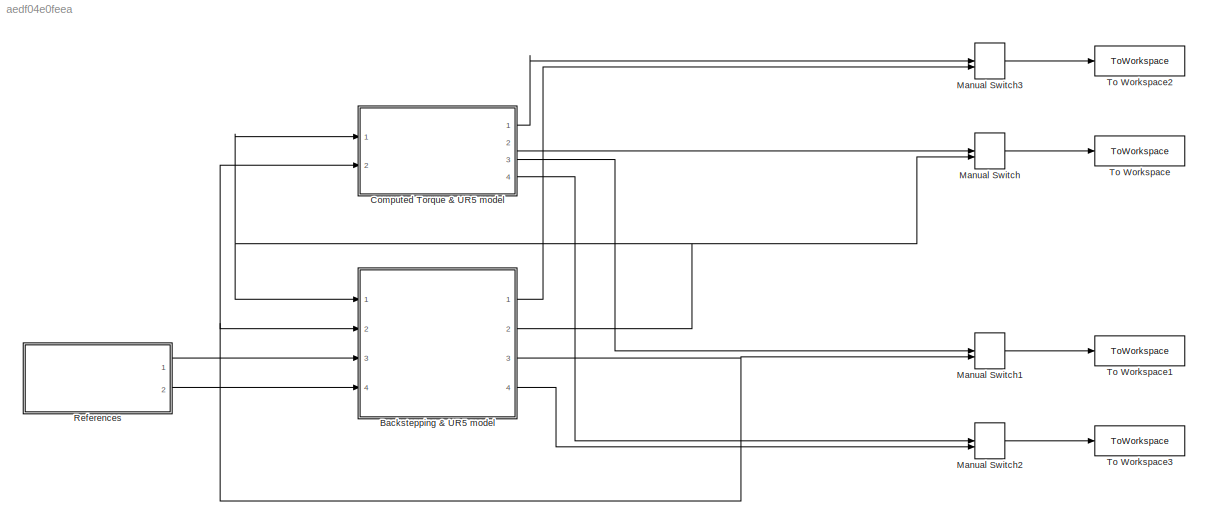
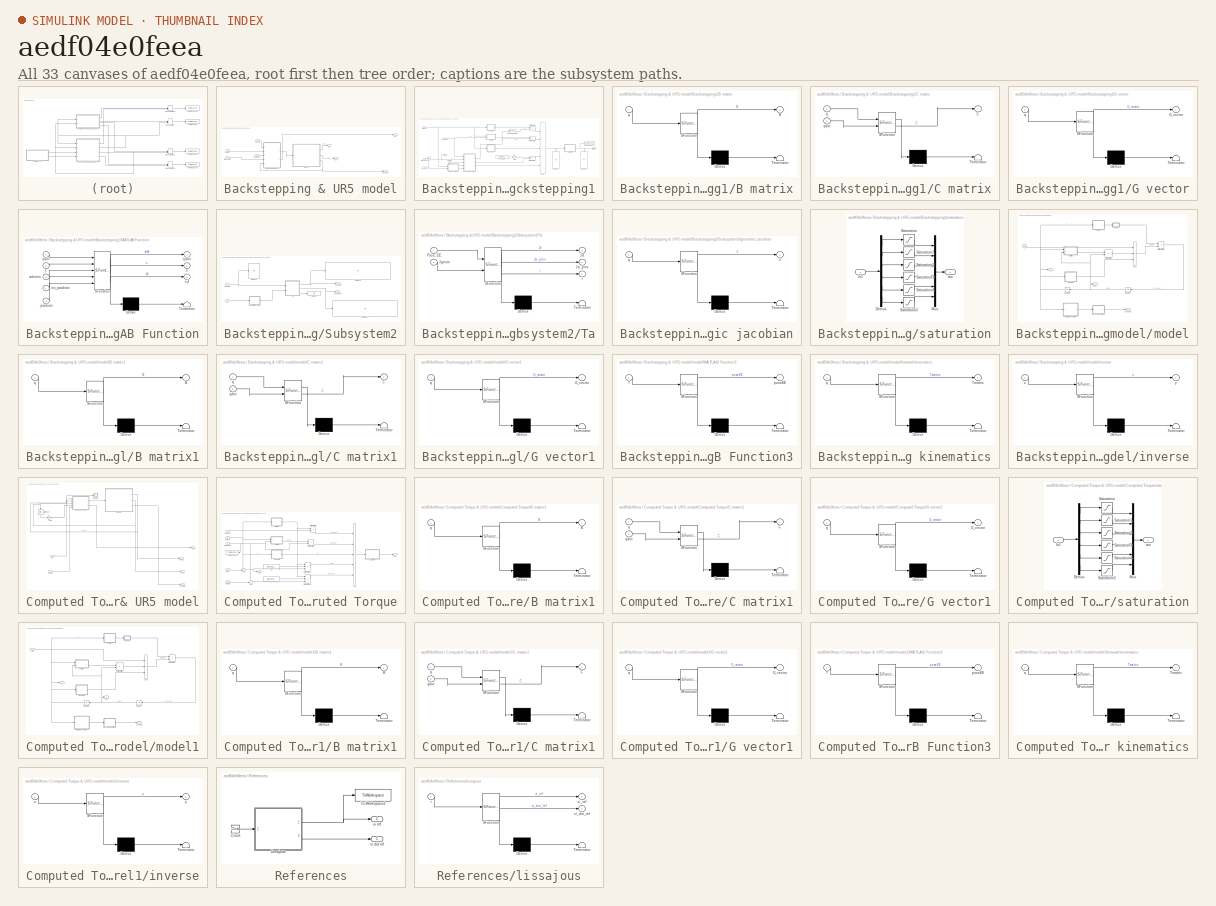
[diagram: thumbnail index - all 33 canvases of the model, root first then tree order]
MODEL slx_aedf04e0feea
KIND model
CONFIG AbsTol = auto
CONFIG EnableMultiTasking = off
CONFIG FixedStep = auto
CONFIG InitFcn = parametersUR5_BACKSTEPPING
CONFIG MaxStep = auto
CONFIG MinStep = auto
CONFIG RelTol = 1e-3
CONFIG SampleTimeConstraint = Unconstrained
CONFIG SolverName = ode23t
CONFIG StartTime = 0.0
CONFIG StopFcn = show_results
CONFIG StopTime = 30
BLOCK [SubSystem] Backstepping & UR5 model
  Ports = [4, 4]
  RequestExecContextInheritance = off
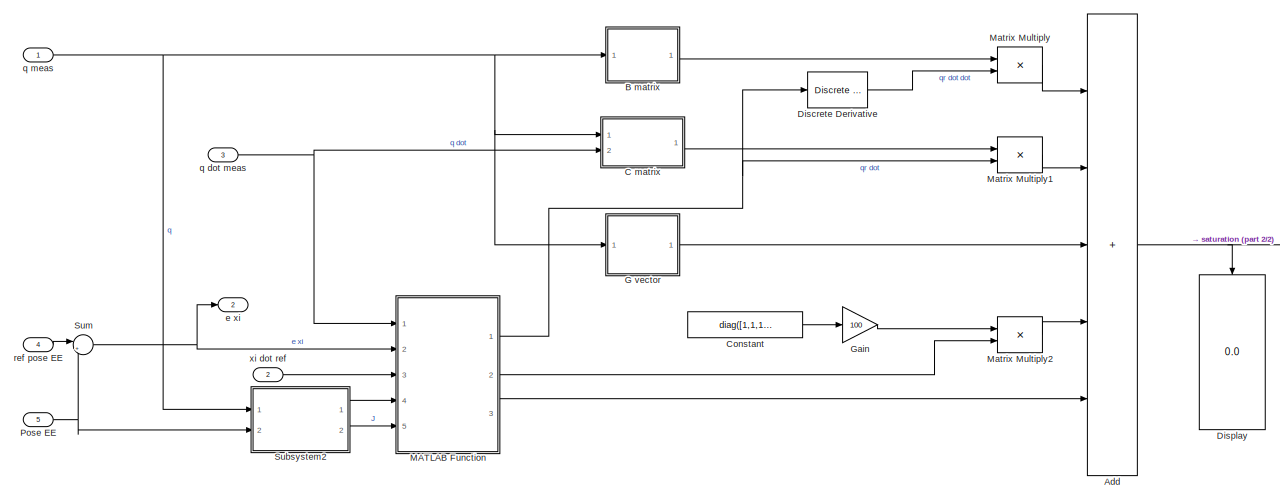
[diagram: Backstepping & UR5 model/Backstepping1 - part 1/2, most of the canvas]
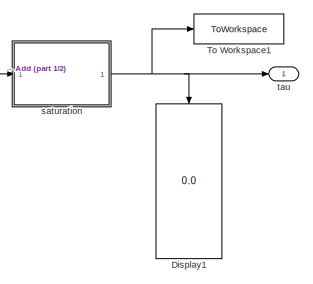
[diagram: Backstepping & UR5 model/Backstepping1 - part 2/2, middle right region]
BLOCK [SubSystem] Backstepping & UR5 model/Backstepping1
  Ports = [5, 2]
  RequestExecContextInheritance = off
BLOCK [Sum] Backstepping & UR5 model/Backstepping1/Add
  IconShape = rectangular
  Inputs = +++++
  Ports = [5, 1]
BLOCK [SubSystem] Backstepping & UR5 model/Backstepping1/B matrix
  ErrorFcn = Stateflow.Translate.translate
  PermitHierarchicalResolution = ExplicitOnly
  Ports = [1, 1]
  RequestExecContextInheritance = off
  SFBlockType = MATLAB Function
  TreatAsAtomicUnit = on
BLOCK [Demux] Backstepping & UR5 model/Backstepping1/B matrix/ Demux 
  Outputs = 1
  Ports = [1, 1]
BLOCK [S-Function] Backstepping & UR5 model/Backstepping1/B matrix/ SFunction 
  EnableBusSupport = on
  FunctionName = sf_sfun
  Parameters = m1,m2,m3,m4,m5,m6
  PortCounts = [1 2]
  Ports = [1, 2]
  SFcnIsStateOwnerBlock = off
  SFunctionDeploymentMode = off
  Tag = Stateflow S-Function 1
BLOCK [Terminator] Backstepping & UR5 model/Backstepping1/B matrix/ Terminator 
BLOCK [Outport] Backstepping & UR5 model/Backstepping1/B matrix/B
BLOCK [Inport] Backstepping & UR5 model/Backstepping1/B matrix/q
BLOCK [SubSystem] Backstepping & UR5 model/Backstepping1/C matrix
  ErrorFcn = Stateflow.Translate.translate
  PermitHierarchicalResolution = ExplicitOnly
  Ports = [2, 1]
  RequestExecContextInheritance = off
  SFBlockType = MATLAB Function
  TreatAsAtomicUnit = on
BLOCK [Demux] Backstepping & UR5 model/Backstepping1/C matrix/ Demux 
  Outputs = 1
  Ports = [1, 1]
BLOCK [S-Function] Backstepping & UR5 model/Backstepping1/C matrix/ SFunction 
  EnableBusSupport = on
  FunctionName = sf_sfun
  Parameters = m2,m3,m4,m5,m6
  PortCounts = [2 2]
  Ports = [2, 2]
  SFcnIsStateOwnerBlock = off
  SFunctionDeploymentMode = off
  Tag = Stateflow S-Function 3
BLOCK [Terminator] Backstepping & UR5 model/Backstepping1/C matrix/ Terminator 
BLOCK [Outport] Backstepping & UR5 model/Backstepping1/C matrix/C
BLOCK [Inport] Backstepping & UR5 model/Backstepping1/C matrix/q
BLOCK [Inport] Backstepping & UR5 model/Backstepping1/C matrix/qdot
  Port = 2
BLOCK [Constant] Backstepping & UR5 model/Backstepping1/Constant
  Value = diag([1,1,1,1,1,1])*40
BLOCK [Reference] Backstepping & UR5 model/Backstepping1/Discrete Derivative  REF=simulink/Discrete/Discrete Derivative
  Ports = [1, 1]
  SourceBlock = simulink/Discrete/Discrete Derivative
  SourceProductBaseCode = SL
  SourceType = Discrete Derivative
BLOCK [Display] Backstepping & UR5 model/Backstepping1/Display
  Decimation = 1
  NameLocation = left
  Ports = [1]
BLOCK [Display] Backstepping & UR5 model/Backstepping1/Display1
  Decimation = 1
  NameLocation = left
  Ports = [1]
BLOCK [SubSystem] Backstepping & UR5 model/Backstepping1/G vector
  ErrorFcn = Stateflow.Translate.translate
  PermitHierarchicalResolution = ExplicitOnly
  Ports = [1, 1]
  RequestExecContextInheritance = off
  SFBlockType = MATLAB Function
  TreatAsAtomicUnit = on
BLOCK [Demux] Backstepping & UR5 model/Backstepping1/G vector/ Demux 
  Outputs = 1
  Ports = [1, 1]
BLOCK [S-Function] Backstepping & UR5 model/Backstepping1/G vector/ SFunction 
  EnableBusSupport = on
  FunctionName = sf_sfun
  Parameters = m2,m3,m4,m5,m6
  PortCounts = [1 2]
  Ports = [1, 2]
  SFcnIsStateOwnerBlock = off
  SFunctionDeploymentMode = off
  Tag = Stateflow S-Function 4
BLOCK [Terminator] Backstepping & UR5 model/Backstepping1/G vector/ Terminator 
BLOCK [Outport] Backstepping & UR5 model/Backstepping1/G vector/G_vector
BLOCK [Inport] Backstepping & UR5 model/Backstepping1/G vector/q
BLOCK [Gain] Backstepping & UR5 model/Backstepping1/Gain
  Gain = 100
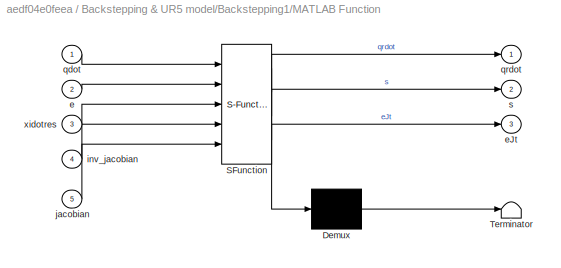
BLOCK [SubSystem] Backstepping & UR5 model/Backstepping1/MATLAB Function
  ErrorFcn = Stateflow.Translate.translate
  PermitHierarchicalResolution = ExplicitOnly
  Ports = [5, 3]
  RequestExecContextInheritance = off
  SFBlockType = MATLAB Function
  TreatAsAtomicUnit = on
BLOCK [Demux] Backstepping & UR5 model/Backstepping1/MATLAB Function/ Demux 
  Outputs = 1
  Ports = [1, 1]
BLOCK [S-Function] Backstepping & UR5 model/Backstepping1/MATLAB Function/ SFunction 
  EnableBusSupport = on
  FunctionName = sf_sfun
  PortCounts = [5 4]
  Ports = [5, 4]
  SFcnIsStateOwnerBlock = off
  SFunctionDeploymentMode = off
  Tag = Stateflow S-Function 5
BLOCK [Terminator] Backstepping & UR5 model/Backstepping1/MATLAB Function/ Terminator 
BLOCK [Inport] Backstepping & UR5 model/Backstepping1/MATLAB Function/e
  Port = 2
BLOCK [Outport] Backstepping & UR5 model/Backstepping1/MATLAB Function/eJt
  Port = 3
BLOCK [Inport] Backstepping & UR5 model/Backstepping1/MATLAB Function/inv_jacobian
  Port = 4
BLOCK [Inport] Backstepping & UR5 model/Backstepping1/MATLAB Function/jacobian
  Port = 5
BLOCK [Inport] Backstepping & UR5 model/Backstepping1/MATLAB Function/qdot
BLOCK [Outport] Backstepping & UR5 model/Backstepping1/MATLAB Function/qrdot
  VectorParamsAs1DForOutWhenUnconnected = off
BLOCK [Outport] Backstepping & UR5 model/Backstepping1/MATLAB Function/s
  Port = 2
BLOCK [Inport] Backstepping & UR5 model/Backstepping1/MATLAB Function/xidotres
  Port = 3
BLOCK [Product] Backstepping & UR5 model/Backstepping1/Matrix Multiply
  Multiplication = Matrix(*)
  Ports = [2, 1]
BLOCK [Product] Backstepping & UR5 model/Backstepping1/Matrix Multiply1
  Multiplication = Matrix(*)
  Ports = [2, 1]
BLOCK [Product] Backstepping & UR5 model/Backstepping1/Matrix Multiply2
  Multiplication = Matrix(*)
  Ports = [2, 1]
BLOCK [Inport] Backstepping & UR5 model/Backstepping1/Pose EE
  Port = 5
BLOCK [SubSystem] Backstepping & UR5 model/Backstepping1/Subsystem2
  Ports = [2, 2]
  RequestExecContextInheritance = off
BLOCK [Display] Backstepping & UR5 model/Backstepping1/Subsystem2/Display
  Decimation = 1
  Ports = [1]
BLOCK [Display] Backstepping & UR5 model/Backstepping1/Subsystem2/Display2
  Decimation = 1
  Ports = [1]
BLOCK [Display] Backstepping & UR5 model/Backstepping1/Subsystem2/Display3
  Decimation = 1
  Ports = [1]
BLOCK [Display] Backstepping & UR5 model/Backstepping1/Subsystem2/Display4
  Decimation = 1
  Ports = [1]
BLOCK [Inport] Backstepping & UR5 model/Backstepping1/Subsystem2/Pose EE
  Port = 2
BLOCK [SubSystem] Backstepping & UR5 model/Backstepping1/Subsystem2/Ta
  ErrorFcn = Stateflow.Translate.translate
  PermitHierarchicalResolution = ExplicitOnly
  Ports = [2, 3]
  RequestExecContextInheritance = off
  SFBlockType = MATLAB Function
  TreatAsAtomicUnit = on
BLOCK [Demux] Backstepping & UR5 model/Backstepping1/Subsystem2/Ta/ Demux 
  Outputs = 1
  Ports = [1, 1]
BLOCK [S-Function] Backstepping & UR5 model/Backstepping1/Subsystem2/Ta/ SFunction 
  EnableBusSupport = on
  FunctionName = sf_sfun
  PortCounts = [2 4]
  Ports = [2, 4]
  SFcnIsStateOwnerBlock = off
  SFunctionDeploymentMode = off
  Tag = Stateflow S-Function 10
BLOCK [Terminator] Backstepping & UR5 model/Backstepping1/Subsystem2/Ta/ Terminator 
BLOCK [Outport] Backstepping & UR5 model/Backstepping1/Subsystem2/Ta/Ja
BLOCK [Outport] Backstepping & UR5 model/Backstepping1/Subsystem2/Ta/Ja_pinv
  Port = 2
BLOCK [Inport] Backstepping & UR5 model/Backstepping1/Subsystem2/Ta/Jgeom
  Port = 2
BLOCK [Inport] Backstepping & UR5 model/Backstepping1/Subsystem2/Ta/Pose_EE
BLOCK [Outport] Backstepping & UR5 model/Backstepping1/Subsystem2/Ta/r
  Port = 3
BLOCK [SubSystem] Backstepping & UR5 model/Backstepping1/Subsystem2/geometric jacobian
  ErrorFcn = Stateflow.Translate.translate
  PermitHierarchicalResolution = ExplicitOnly
  Ports = [1, 1]
  RequestExecContextInheritance = off
  SFBlockType = MATLAB Function
  TreatAsAtomicUnit = on
BLOCK [Demux] Backstepping & UR5 model/Backstepping1/Subsystem2/geometric jacobian/ Demux 
  Outputs = 1
  Ports = [1, 1]
BLOCK [S-Function] Backstepping & UR5 model/Backstepping1/Subsystem2/geometric jacobian/ SFunction 
  EnableBusSupport = on
  FunctionName = sf_sfun
  PortCounts = [1 2]
  Ports = [1, 2]
  SFcnIsStateOwnerBlock = off
  SFunctionDeploymentMode = off
  Tag = Stateflow S-Function 20
BLOCK [Terminator] Backstepping & UR5 model/Backstepping1/Subsystem2/geometric jacobian/ Terminator 
BLOCK [Outport] Backstepping & UR5 model/Backstepping1/Subsystem2/geometric jacobian/J
BLOCK [Inport] Backstepping & UR5 model/Backstepping1/Subsystem2/geometric jacobian/q
BLOCK [Outport] Backstepping & UR5 model/Backstepping1/Subsystem2/jacobian
  Port = 2
BLOCK [Outport] Backstepping & UR5 model/Backstepping1/Subsystem2/jacobian^-1
BLOCK [Inport] Backstepping & UR5 model/Backstepping1/Subsystem2/q
BLOCK [Sum] Backstepping & UR5 model/Backstepping1/Sum
  Inputs = |+-
  Ports = [2, 1]
BLOCK [ToWorkspace] Backstepping & UR5 model/Backstepping1/To Workspace1
  FixptAsFi = on
  MaxDataPoints = inf
  Ports = [1]
  SampleTime = Ts
  SaveFormat = Timeseries
  VariableName = torque
BLOCK [Outport] Backstepping & UR5 model/Backstepping1/e xi
  Port = 2
BLOCK [Inport] Backstepping & UR5 model/Backstepping1/q dot meas
  Port = 3
BLOCK [Inport] Backstepping & UR5 model/Backstepping1/q meas
BLOCK [Inport] Backstepping & UR5 model/Backstepping1/ref pose EE
  Port = 4
BLOCK [SubSystem] Backstepping & UR5 model/Backstepping1/saturation
  Ports = [1, 1]
  RequestExecContextInheritance = off
BLOCK [Demux] Backstepping & UR5 model/Backstepping1/saturation/Demux
  Outputs = 6
  Ports = [1, 6]
BLOCK [Inport] Backstepping & UR5 model/Backstepping1/saturation/In1
BLOCK [Mux] Backstepping & UR5 model/Backstepping1/saturation/Mux
  DisplayOption = bar
  Inputs = 6
  Ports = [6, 1]
BLOCK [Saturate] Backstepping & UR5 model/Backstepping1/saturation/Saturation
  LowerLimit = -150
  UpperLimit = 150
BLOCK [Saturate] Backstepping & UR5 model/Backstepping1/saturation/Saturation1
  LowerLimit = -150
  UpperLimit = 150
BLOCK [Saturate] Backstepping & UR5 model/Backstepping1/saturation/Saturation2
  LowerLimit = -150
  UpperLimit = 150
BLOCK [Saturate] Backstepping & UR5 model/Backstepping1/saturation/Saturation3
  LowerLimit = -28
  UpperLimit = 28
BLOCK [Saturate] Backstepping & UR5 model/Backstepping1/saturation/Saturation4
  LowerLimit = -28
  UpperLimit = 28
BLOCK [Saturate] Backstepping & UR5 model/Backstepping1/saturation/Saturation5
  LowerLimit = -28
  UpperLimit = 28
BLOCK [Outport] Backstepping & UR5 model/Backstepping1/saturation/tau
BLOCK [Outport] Backstepping & UR5 model/Backstepping1/tau
BLOCK [Inport] Backstepping & UR5 model/Backstepping1/xi dot ref
  NameLocation = left
  Port = 2
BLOCK [Outport] Backstepping & UR5 model/e xi
BLOCK [SubSystem] Backstepping & UR5 model/model
  Ports = [1, 3]
  RequestExecContextInheritance = off
BLOCK [Sum] Backstepping & UR5 model/model/Add2
  IconShape = rectangular
  Inputs = +--
  Ports = [3, 1]
BLOCK [SubSystem] Backstepping & UR5 model/model/B matrix1
  ErrorFcn = Stateflow.Translate.translate
  PermitHierarchicalResolution = ExplicitOnly
  Ports = [1, 1]
  RequestExecContextInheritance = off
  SFBlockType = MATLAB Function
  TreatAsAtomicUnit = on
BLOCK [Demux] Backstepping & UR5 model/model/B matrix1/ Demux 
  Outputs = 1
  Ports = [1, 1]
BLOCK [S-Function] Backstepping & UR5 model/model/B matrix1/ SFunction 
  EnableBusSupport = on
  FunctionName = sf_sfun
  Parameters = m1,m2,m3,m4,m5,m6
  PortCounts = [1 2]
  Ports = [1, 2]
  SFcnIsStateOwnerBlock = off
  SFunctionDeploymentMode = off
  Tag = Stateflow S-Function 17
BLOCK [Terminator] Backstepping & UR5 model/model/B matrix1/ Terminator 
BLOCK [Outport] Backstepping & UR5 model/model/B matrix1/B
BLOCK [Inport] Backstepping & UR5 model/model/B matrix1/q
BLOCK [SubSystem] Backstepping & UR5 model/model/C matrix1
  ErrorFcn = Stateflow.Translate.translate
  PermitHierarchicalResolution = ExplicitOnly
  Ports = [2, 1]
  RequestExecContextInheritance = off
  SFBlockType = MATLAB Function
  TreatAsAtomicUnit = on
BLOCK [Demux] Backstepping & UR5 model/model/C matrix1/ Demux 
  Outputs = 1
  Ports = [1, 1]
BLOCK [S-Function] Backstepping & UR5 model/model/C matrix1/ SFunction 
  EnableBusSupport = on
  FunctionName = sf_sfun
  Parameters = m2,m3,m4,m5,m6
  PortCounts = [2 2]
  Ports = [2, 2]
  SFcnIsStateOwnerBlock = off
  SFunctionDeploymentMode = off
  Tag = Stateflow S-Function 18
BLOCK [Terminator] Backstepping & UR5 model/model/C matrix1/ Terminator 
BLOCK [Outport] Backstepping & UR5 model/model/C matrix1/C
BLOCK [Inport] Backstepping & UR5 model/model/C matrix1/q
BLOCK [Inport] Backstepping & UR5 model/model/C matrix1/qdot
  Port = 2
BLOCK [SubSystem] Backstepping & UR5 model/model/G vector1
  ErrorFcn = Stateflow.Translate.translate
  PermitHierarchicalResolution = ExplicitOnly
  Ports = [1, 1]
  RequestExecContextInheritance = off
  SFBlockType = MATLAB Function
  TreatAsAtomicUnit = on
BLOCK [Demux] Backstepping & UR5 model/model/G vector1/ Demux 
  Outputs = 1
  Ports = [1, 1]
BLOCK [S-Function] Backstepping & UR5 model/model/G vector1/ SFunction 
  EnableBusSupport = on
  FunctionName = sf_sfun
  Parameters = m2,m3,m4,m5,m6
  PortCounts = [1 2]
  Ports = [1, 2]
  SFcnIsStateOwnerBlock = off
  SFunctionDeploymentMode = off
  Tag = Stateflow S-Function 25
BLOCK [Terminator] Backstepping & UR5 model/model/G vector1/ Terminator 
BLOCK [Outport] Backstepping & UR5 model/model/G vector1/G_vector
BLOCK [Inport] Backstepping & UR5 model/model/G vector1/q
BLOCK [Integrator] Backstepping & UR5 model/model/Integrator
  InitialCondition = [0,0,0,0,0,0]'
  NameLocation = top
  Ports = [1, 1]
BLOCK [Integrator] Backstepping & UR5 model/model/Integrator1
  InitialCondition = init_config
  NameLocation = top
  Ports = [1, 1]
BLOCK [SubSystem] Backstepping & UR5 model/model/MATLAB Function3
  ErrorFcn = Stateflow.Translate.translate
  PermitHierarchicalResolution = ExplicitOnly
  Ports = [1, 1]
  RequestExecContextInheritance = off
  SFBlockType = MATLAB Function
  TreatAsAtomicUnit = on
BLOCK [Demux] Backstepping & UR5 model/model/MATLAB Function3/ Demux 
  Outputs = 1
  Ports = [1, 1]
BLOCK [S-Function] Backstepping & UR5 model/model/MATLAB Function3/ SFunction 
  EnableBusSupport = on
  FunctionName = sf_sfun
  PortCounts = [1 2]
  Ports = [1, 2]
  SFcnIsStateOwnerBlock = off
  SFunctionDeploymentMode = off
  Tag = Stateflow S-Function 22
BLOCK [Terminator] Backstepping & UR5 model/model/MATLAB Function3/ Terminator 
BLOCK [Inport] Backstepping & UR5 model/model/MATLAB Function3/T
BLOCK [Outport] Backstepping & UR5 model/model/MATLAB Function3/poseEE
BLOCK [Product] Backstepping & UR5 model/model/Matrix Multiply
  Multiplication = Matrix(*)
  Ports = [2, 1]
BLOCK [Product] Backstepping & UR5 model/model/MatrixMultiply1
  Multiplication = Matrix(*)
  Ports = [2, 1]
BLOCK [SubSystem] Backstepping & UR5 model/model/forward kinematics
  ErrorFcn = Stateflow.Translate.translate
  PermitHierarchicalResolution = ExplicitOnly
  Ports = [1, 1]
  RequestExecContextInheritance = off
  SFBlockType = MATLAB Function
  TreatAsAtomicUnit = on
BLOCK [Demux] Backstepping & UR5 model/model/forward kinematics/ Demux 
  Outputs = 1
  Ports = [1, 1]
BLOCK [S-Function] Backstepping & UR5 model/model/forward kinematics/ SFunction 
  EnableBusSupport = on
  FunctionName = sf_sfun
  PortCounts = [1 2]
  Ports = [1, 2]
  SFcnIsStateOwnerBlock = off
  SFunctionDeploymentMode = off
  Tag = Stateflow S-Function 9
BLOCK [Terminator] Backstepping & UR5 model/model/forward kinematics/ Terminator 
BLOCK [Outport] Backstepping & UR5 model/model/forward kinematics/Tmatrix
BLOCK [Inport] Backstepping & UR5 model/model/forward kinematics/q
BLOCK [SubSystem] Backstepping & UR5 model/model/inverse
  ErrorFcn = Stateflow.Translate.translate
  PermitHierarchicalResolution = ExplicitOnly
  Ports = [1, 1]
  RequestExecContextInheritance = off
  SFBlockType = MATLAB Function
  TreatAsAtomicUnit = on
BLOCK [Demux] Backstepping & UR5 model/model/inverse/ Demux 
  Outputs = 1
  Ports = [1, 1]
BLOCK [S-Function] Backstepping & UR5 model/model/inverse/ SFunction 
  EnableBusSupport = on
  FunctionName = sf_sfun
  PortCounts = [1 2]
  Ports = [1, 2]
  SFcnIsStateOwnerBlock = off
  SFunctionDeploymentMode = off
  Tag = Stateflow S-Function 19
BLOCK [Terminator] Backstepping & UR5 model/model/inverse/ Terminator 
BLOCK [Inport] Backstepping & UR5 model/model/inverse/u
BLOCK [Outport] Backstepping & UR5 model/model/inverse/y
BLOCK [Outport] Backstepping & UR5 model/model/pose EE
  Port = 3
BLOCK [Outport] Backstepping & UR5 model/model/q
BLOCK [Outport] Backstepping & UR5 model/model/qdot
  Port = 2
BLOCK [Inport] Backstepping & UR5 model/model/tau
BLOCK [Outport] Backstepping & UR5 model/pose EE
  Port = 4
BLOCK [Inport] Backstepping & UR5 model/q dot meas
  Port = 2
BLOCK [Inport] Backstepping & UR5 model/q meas
BLOCK [Outport] Backstepping & UR5 model/q ref
  Port = 2
BLOCK [Outport] Backstepping & UR5 model/qdot
  Port = 3
BLOCK [Inport] Backstepping & UR5 model/ref pose EE
  Port = 4
BLOCK [Inport] Backstepping & UR5 model/xi dot ref
  Port = 3
BLOCK [SubSystem] Computed Torque & UR5 model
  Ports = [2, 4]
  RequestExecContextInheritance = off
BLOCK [SubSystem] Computed Torque & UR5 model/Computed Torque
  Ports = [5, 2]
  RequestExecContextInheritance = off
BLOCK [Sum] Computed Torque & UR5 model/Computed Torque/Add
  IconShape = rectangular
  Inputs = +++++
  Ports = [5, 1]
BLOCK [SubSystem] Computed Torque & UR5 model/Computed Torque/B matrix1
  ErrorFcn = Stateflow.Translate.translate
  PermitHierarchicalResolution = ExplicitOnly
  Ports = [1, 1]
  RequestExecContextInheritance = off
  SFBlockType = MATLAB Function
  TreatAsAtomicUnit = on
BLOCK [Demux] Computed Torque & UR5 model/Computed Torque/B matrix1/ Demux 
  Outputs = 1
  Ports = [1, 1]
BLOCK [S-Function] Computed Torque & UR5 model/Computed Torque/B matrix1/ SFunction 
  EnableBusSupport = on
  FunctionName = sf_sfun
  Parameters = m1,m2,m3,m4,m5,m6
  PortCounts = [1 2]
  Ports = [1, 2]
  SFcnIsStateOwnerBlock = off
  SFunctionDeploymentMode = off
  Tag = Stateflow S-Function 13
BLOCK [Terminator] Computed Torque & UR5 model/Computed Torque/B matrix1/ Terminator 
BLOCK [Outport] Computed Torque & UR5 model/Computed Torque/B matrix1/B
BLOCK [Inport] Computed Torque & UR5 model/Computed Torque/B matrix1/q
BLOCK [SubSystem] Computed Torque & UR5 model/Computed Torque/C matrix1
  ErrorFcn = Stateflow.Translate.translate
  PermitHierarchicalResolution = ExplicitOnly
  Ports = [2, 1]
  RequestExecContextInheritance = off
  SFBlockType = MATLAB Function
  TreatAsAtomicUnit = on
BLOCK [Demux] Computed Torque & UR5 model/Computed Torque/C matrix1/ Demux 
  Outputs = 1
  Ports = [1, 1]
BLOCK [S-Function] Computed Torque & UR5 model/Computed Torque/C matrix1/ SFunction 
  EnableBusSupport = on
  FunctionName = sf_sfun
  Parameters = m2,m3,m4,m5,m6
  PortCounts = [2 2]
  Ports = [2, 2]
  SFcnIsStateOwnerBlock = off
  SFunctionDeploymentMode = off
  Tag = Stateflow S-Function 14
BLOCK [Terminator] Computed Torque & UR5 model/Computed Torque/C matrix1/ Terminator 
BLOCK [Outport] Computed Torque & UR5 model/Computed Torque/C matrix1/C
BLOCK [Inport] Computed Torque & UR5 model/Computed Torque/C matrix1/q
BLOCK [Inport] Computed Torque & UR5 model/Computed Torque/C matrix1/qdot
  Port = 2
BLOCK [SubSystem] Computed Torque & UR5 model/Computed Torque/G vector1
  ErrorFcn = Stateflow.Translate.translate
  PermitHierarchicalResolution = ExplicitOnly
  Ports = [1, 1]
  RequestExecContextInheritance = off
  SFBlockType = MATLAB Function
  TreatAsAtomicUnit = on
BLOCK [Demux] Computed Torque & UR5 model/Computed Torque/G vector1/ Demux 
  Outputs = 1
  Ports = [1, 1]
BLOCK [S-Function] Computed Torque & UR5 model/Computed Torque/G vector1/ SFunction 
  EnableBusSupport = on
  FunctionName = sf_sfun
  Parameters = m2,m3,m4,m5,m6
  PortCounts = [1 2]
  Ports = [1, 2]
  SFcnIsStateOwnerBlock = off
  SFunctionDeploymentMode = off
  Tag = Stateflow S-Function 15
BLOCK [Terminator] Computed Torque & UR5 model/Computed Torque/G vector1/ Terminator 
BLOCK [Outport] Computed Torque & UR5 model/Computed Torque/G vector1/G_vector
BLOCK [Inport] Computed Torque & UR5 model/Computed Torque/G vector1/q
BLOCK [Constant] Computed Torque & UR5 model/Computed Torque/Kp
  NameLocation = top
  Value = diag([1,1,1,1,1,1])*100
BLOCK [Constant] Computed Torque & UR5 model/Computed Torque/Kv
  NameLocation = top
  Value = diag([1,1,1,1,1,1])*100
BLOCK [Product] Computed Torque & UR5 model/Computed Torque/MatrixMultiply
  Multiplication = Matrix(*)
  Ports = [2, 1]
BLOCK [Product] Computed Torque & UR5 model/Computed Torque/MatrixMultiply1
  Multiplication = Matrix(*)
  Ports = [2, 1]
BLOCK [Product] Computed Torque & UR5 model/Computed Torque/MatrixMultiply2
  Inputs = 3
  Multiplication = Matrix(*)
  Ports = [3, 1]
BLOCK [Product] Computed Torque & UR5 model/Computed Torque/MatrixMultiply3
  Inputs = 3
  Multiplication = Matrix(*)
  Ports = [3, 1]
BLOCK [Sum] Computed Torque & UR5 model/Computed Torque/Sum
  Inputs = -+|
  Ports = [2, 1]
BLOCK [Sum] Computed Torque & UR5 model/Computed Torque/Sum1
  Inputs = -+|
  Ports = [2, 1]
BLOCK [ToWorkspace] Computed Torque & UR5 model/Computed Torque/To Workspace
  FixptAsFi = on
  MaxDataPoints = inf
  Ports = [1]
  SampleTime = -1
  SaveFormat = Timeseries
  VariableName = qd_des
BLOCK [Outport] Computed Torque & UR5 model/Computed Torque/e
  Port = 2
BLOCK [Inport] Computed Torque & UR5 model/Computed Torque/q dot meas
  NameLocation = left
  Port = 3
BLOCK [Inport] Computed Torque & UR5 model/Computed Torque/q dot ref
  Port = 5
BLOCK [Inport] Computed Torque & UR5 model/Computed Torque/q meas
  NameLocation = left
  Port = 2
BLOCK [Inport] Computed Torque & UR5 model/Computed Torque/q ref
BLOCK [Inport] Computed Torque & UR5 model/Computed Torque/qdotdot
  NameLocation = left
  Port = 4
BLOCK [SubSystem] Computed Torque & UR5 model/Computed Torque/saturation
  Ports = [1, 1]
  RequestExecContextInheritance = off
BLOCK [Demux] Computed Torque & UR5 model/Computed Torque/saturation/Demux
  Outputs = 6
  Ports = [1, 6]
BLOCK [Inport] Computed Torque & UR5 model/Computed Torque/saturation/In1
BLOCK [Mux] Computed Torque & UR5 model/Computed Torque/saturation/Mux
  DisplayOption = bar
  Inputs = 6
  Ports = [6, 1]
BLOCK [Saturate] Computed Torque & UR5 model/Computed Torque/saturation/Saturation
  LowerLimit = -150
  UpperLimit = 150
BLOCK [Saturate] Computed Torque & UR5 model/Computed Torque/saturation/Saturation1
  LowerLimit = -150
  UpperLimit = 150
BLOCK [Saturate] Computed Torque & UR5 model/Computed Torque/saturation/Saturation2
  LowerLimit = -150
  UpperLimit = 150
BLOCK [Saturate] Computed Torque & UR5 model/Computed Torque/saturation/Saturation3
  LowerLimit = -28
  UpperLimit = 28
BLOCK [Saturate] Computed Torque & UR5 model/Computed Torque/saturation/Saturation4
  LowerLimit = -28
  UpperLimit = 28
BLOCK [Saturate] Computed Torque & UR5 model/Computed Torque/saturation/Saturation5
  LowerLimit = -28
  UpperLimit = 28
BLOCK [Outport] Computed Torque & UR5 model/Computed Torque/saturation/tau
BLOCK [Outport] Computed Torque & UR5 model/Computed Torque/tau
BLOCK [Reference] Computed Torque & UR5 model/Difference  REF=simulink/Discrete/Difference
  NameLocation = left
  Ports = [1, 1]
  SourceBlock = simulink/Discrete/Difference
  SourceProductBaseCode = SL
  SourceType = Difference
BLOCK [Gain] Computed Torque & UR5 model/Gain
  Gain = 1/Ts
BLOCK [Scope] Computed Torque & UR5 model/Scope
  Floating = off
  NumInputPorts = 1
  Ports = [1]
  ScopeSpecificationString = Simulink.scopes.TimeScopeBlockCfg('CurrentConfiguration', extmgr.ConfigurationSet(extmgr.Configuration('Core','General UI',true),extmgr.Configuration('Core','Source UI',true),extmgr.Configuration('Sources','WiredSimulink',true,'DataLoggingVariableName','ScopeData3'),extmgr.Configuration('Visuals','Time Domain',true,'SerializedDisplays',{struct('MinYLimReal','-2.27984','MaxYLimReal','1.31991','YLab...<+1596ch>
BLOCK [Outport] Computed Torque & UR5 model/e
BLOCK [SubSystem] Computed Torque & UR5 model/model1
  Ports = [1, 3]
  RequestExecContextInheritance = off
BLOCK [Sum] Computed Torque & UR5 model/model1/Add2
  IconShape = rectangular
  Inputs = +--
  Ports = [3, 1]
BLOCK [SubSystem] Computed Torque & UR5 model/model1/B matrix1
  ErrorFcn = Stateflow.Translate.translate
  PermitHierarchicalResolution = ExplicitOnly
  Ports = [1, 1]
  RequestExecContextInheritance = off
  SFBlockType = MATLAB Function
  TreatAsAtomicUnit = on
BLOCK [Demux] Computed Torque & UR5 model/model1/B matrix1/ Demux 
  Outputs = 1
  Ports = [1, 1]
BLOCK [S-Function] Computed Torque & UR5 model/model1/B matrix1/ SFunction 
  EnableBusSupport = on
  FunctionName = sf_sfun
  Parameters = m1,m2,m3,m4,m5,m6
  PortCounts = [1 2]
  Ports = [1, 2]
  SFcnIsStateOwnerBlock = off
  SFunctionDeploymentMode = off
  Tag = Stateflow S-Function 2
BLOCK [Terminator] Computed Torque & UR5 model/model1/B matrix1/ Terminator 
BLOCK [Outport] Computed Torque & UR5 model/model1/B matrix1/B
BLOCK [Inport] Computed Torque & UR5 model/model1/B matrix1/q
BLOCK [SubSystem] Computed Torque & UR5 model/model1/C matrix1
  ErrorFcn = Stateflow.Translate.translate
  PermitHierarchicalResolution = ExplicitOnly
  Ports = [2, 1]
  RequestExecContextInheritance = off
  SFBlockType = MATLAB Function
  TreatAsAtomicUnit = on
BLOCK [Demux] Computed Torque & UR5 model/model1/C matrix1/ Demux 
  Outputs = 1
  Ports = [1, 1]
BLOCK [S-Function] Computed Torque & UR5 model/model1/C matrix1/ SFunction 
  EnableBusSupport = on
  FunctionName = sf_sfun
  Parameters = m2,m3,m4,m5,m6
  PortCounts = [2 2]
  Ports = [2, 2]
  SFcnIsStateOwnerBlock = off
  SFunctionDeploymentMode = off
  Tag = Stateflow S-Function 6
BLOCK [Terminator] Computed Torque & UR5 model/model1/C matrix1/ Terminator 
BLOCK [Outport] Computed Torque & UR5 model/model1/C matrix1/C
BLOCK [Inport] Computed Torque & UR5 model/model1/C matrix1/q
BLOCK [Inport] Computed Torque & UR5 model/model1/C matrix1/qdot
  Port = 2
BLOCK [SubSystem] Computed Torque & UR5 model/model1/G vector1
  ErrorFcn = Stateflow.Translate.translate
  PermitHierarchicalResolution = ExplicitOnly
  Ports = [1, 1]
  RequestExecContextInheritance = off
  SFBlockType = MATLAB Function
  TreatAsAtomicUnit = on
BLOCK [Demux] Computed Torque & UR5 model/model1/G vector1/ Demux 
  Outputs = 1
  Ports = [1, 1]
BLOCK [S-Function] Computed Torque & UR5 model/model1/G vector1/ SFunction 
  EnableBusSupport = on
  FunctionName = sf_sfun
  Parameters = m2,m3,m4,m5,m6
  PortCounts = [1 2]
  Ports = [1, 2]
  SFcnIsStateOwnerBlock = off
  SFunctionDeploymentMode = off
  Tag = Stateflow S-Function 7
BLOCK [Terminator] Computed Torque & UR5 model/model1/G vector1/ Terminator 
BLOCK [Outport] Computed Torque & UR5 model/model1/G vector1/G_vector
BLOCK [Inport] Computed Torque & UR5 model/model1/G vector1/q
BLOCK [Integrator] Computed Torque & UR5 model/model1/Integrator
  InitialCondition = [0,0,0,0,0,0]'
  NameLocation = top
  Ports = [1, 1]
BLOCK [Integrator] Computed Torque & UR5 model/model1/Integrator1
  InitialCondition = init_config
  NameLocation = top
  Ports = [1, 1]
BLOCK [SubSystem] Computed Torque & UR5 model/model1/MATLAB Function3
  ErrorFcn = Stateflow.Translate.translate
  PermitHierarchicalResolution = ExplicitOnly
  Ports = [1, 1]
  RequestExecContextInheritance = off
  SFBlockType = MATLAB Function
  TreatAsAtomicUnit = on
BLOCK [Demux] Computed Torque & UR5 model/model1/MATLAB Function3/ Demux 
  Outputs = 1
  Ports = [1, 1]
BLOCK [S-Function] Computed Torque & UR5 model/model1/MATLAB Function3/ SFunction 
  EnableBusSupport = on
  FunctionName = sf_sfun
  PortCounts = [1 2]
  Ports = [1, 2]
  SFcnIsStateOwnerBlock = off
  SFunctionDeploymentMode = off
  Tag = Stateflow S-Function 8
BLOCK [Terminator] Computed Torque & UR5 model/model1/MATLAB Function3/ Terminator 
BLOCK [Inport] Computed Torque & UR5 model/model1/MATLAB Function3/T
BLOCK [Outport] Computed Torque & UR5 model/model1/MATLAB Function3/poseEE
BLOCK [Product] Computed Torque & UR5 model/model1/Matrix Multiply
  Multiplication = Matrix(*)
  Ports = [2, 1]
BLOCK [Product] Computed Torque & UR5 model/model1/MatrixMultiply1
  Multiplication = Matrix(*)
  Ports = [2, 1]
BLOCK [SubSystem] Computed Torque & UR5 model/model1/forward kinematics
  ErrorFcn = Stateflow.Translate.translate
  PermitHierarchicalResolution = ExplicitOnly
  Ports = [1, 1]
  RequestExecContextInheritance = off
  SFBlockType = MATLAB Function
  TreatAsAtomicUnit = on
BLOCK [Demux] Computed Torque & UR5 model/model1/forward kinematics/ Demux 
  Outputs = 1
  Ports = [1, 1]
BLOCK [S-Function] Computed Torque & UR5 model/model1/forward kinematics/ SFunction 
  EnableBusSupport = on
  FunctionName = sf_sfun
  PortCounts = [1 2]
  Ports = [1, 2]
  SFcnIsStateOwnerBlock = off
  SFunctionDeploymentMode = off
  Tag = Stateflow S-Function 11
BLOCK [Terminator] Computed Torque & UR5 model/model1/forward kinematics/ Terminator 
BLOCK [Outport] Computed Torque & UR5 model/model1/forward kinematics/Tmatrix
BLOCK [Inport] Computed Torque & UR5 model/model1/forward kinematics/q
BLOCK [SubSystem] Computed Torque & UR5 model/model1/inverse
  ErrorFcn = Stateflow.Translate.translate
  PermitHierarchicalResolution = ExplicitOnly
  Ports = [1, 1]
  RequestExecContextInheritance = off
  SFBlockType = MATLAB Function
  TreatAsAtomicUnit = on
BLOCK [Demux] Computed Torque & UR5 model/model1/inverse/ Demux 
  Outputs = 1
  Ports = [1, 1]
BLOCK [S-Function] Computed Torque & UR5 model/model1/inverse/ SFunction 
  EnableBusSupport = on
  FunctionName = sf_sfun
  PortCounts = [1 2]
  Ports = [1, 2]
  SFcnIsStateOwnerBlock = off
  SFunctionDeploymentMode = off
  Tag = Stateflow S-Function 12
BLOCK [Terminator] Computed Torque & UR5 model/model1/inverse/ Terminator 
BLOCK [Inport] Computed Torque & UR5 model/model1/inverse/u
BLOCK [Outport] Computed Torque & UR5 model/model1/inverse/y
BLOCK [Outport] Computed Torque & UR5 model/model1/pose EE
  Port = 3
BLOCK [Outport] Computed Torque & UR5 model/model1/q
BLOCK [Outport] Computed Torque & UR5 model/model1/qdot
  Port = 2
BLOCK [Inport] Computed Torque & UR5 model/model1/tau
BLOCK [Outport] Computed Torque & UR5 model/pose EE
  Port = 4
BLOCK [Inport] Computed Torque & UR5 model/q dot ref
  Port = 2
BLOCK [Outport] Computed Torque & UR5 model/q meas
  Port = 2
BLOCK [Inport] Computed Torque & UR5 model/q ref
BLOCK [Outport] Computed Torque & UR5 model/qdot
  Port = 3
BLOCK [ManualSwitch] Manual Switch
  CurrentSetting = 0
BLOCK [ManualSwitch] Manual Switch1
  CurrentSetting = 0
BLOCK [ManualSwitch] Manual Switch2
  CurrentSetting = 0
BLOCK [ManualSwitch] Manual Switch3
  CurrentSetting = 0
BLOCK [SubSystem] References
  Ports = [0, 2]
  RequestExecContextInheritance = off
BLOCK [Clock] References/Clock
BLOCK [ToWorkspace] References/To Workspace2
  FixptAsFi = on
  MaxDataPoints = inf
  Ports = [1]
  SampleTime = Ts
  SaveFormat = Timeseries
  VariableName = refEE
BLOCK [SubSystem] References/lissajous
  ErrorFcn = Stateflow.Translate.translate
  PermitHierarchicalResolution = ExplicitOnly
  Ports = [1, 2]
  RequestExecContextInheritance = off
  SFBlockType = MATLAB Function
  TreatAsAtomicUnit = on
BLOCK [Demux] References/lissajous/ Demux 
  Outputs = 1
  Ports = [1, 1]
BLOCK [S-Function] References/lissajous/ SFunction 
  EnableBusSupport = on
  FunctionName = sf_sfun
  PortCounts = [1 3]
  Ports = [1, 3]
  SFcnIsStateOwnerBlock = off
  SFunctionDeploymentMode = off
  Tag = Stateflow S-Function 23
BLOCK [Terminator] References/lissajous/ Terminator 
BLOCK [Inport] References/lissajous/t
BLOCK [Outport] References/lissajous/xi_dot_ref
  Port = 2
BLOCK [Outport] References/lissajous/xi_ref
BLOCK [Outport] References/xi dot ref
BLOCK [Outport] References/xi ref
  Port = 2
BLOCK [ToWorkspace] To Workspace
  FixptAsFi = on
  MaxDataPoints = inf
  Ports = [1]
  SampleTime = Ts
  SaveFormat = Timeseries
  VariableName = q
BLOCK [ToWorkspace] To Workspace1
  FixptAsFi = on
  MaxDataPoints = inf
  Ports = [1]
  SampleTime = Ts
  SaveFormat = Timeseries
  VariableName = qdot
BLOCK [ToWorkspace] To Workspace2
  FixptAsFi = on
  MaxDataPoints = inf
  Ports = [1]
  SampleTime = Ts
  SaveFormat = Timeseries
  VariableName = error
BLOCK [ToWorkspace] To Workspace3
  FixptAsFi = on
  MaxDataPoints = inf
  Ports = [1]
  SampleTime = Ts
  SaveFormat = Timeseries
  VariableName = EEPose
NET Backstepping & UR5 model/Backstepping1/Add:1 -> Backstepping & UR5 model/Backstepping1/Display:1, Backstepping & UR5 model/Backstepping1/saturation:1
LINE Backstepping & UR5 model/Backstepping1/B matrix:1 -> Backstepping & UR5 model/Backstepping1/Matrix Multiply:1
LINE Backstepping & UR5 model/Backstepping1/C matrix:1 -> Backstepping & UR5 model/Backstepping1/Matrix Multiply1:1
LINE Backstepping & UR5 model/Backstepping1/Constant:1 -> Backstepping & UR5 model/Backstepping1/Gain:1
LINE Backstepping & UR5 model/Backstepping1/Discrete Derivative:1 -> Backstepping & UR5 model/Backstepping1/Matrix Multiply:2
LINE Backstepping & UR5 model/Backstepping1/G vector:1 -> Backstepping & UR5 model/Backstepping1/Add:3
LINE Backstepping & UR5 model/Backstepping1/Gain:1 -> Backstepping & UR5 model/Backstepping1/Matrix Multiply2:1
NET Backstepping & UR5 model/Backstepping1/MATLAB Function:1 -> Backstepping & UR5 model/Backstepping1/Discrete Derivative:1, Backstepping & UR5 model/Backstepping1/Matrix Multiply1:2
LINE Backstepping & UR5 model/Backstepping1/MATLAB Function:2 -> Backstepping & UR5 model/Backstepping1/Matrix Multiply2:2
LINE Backstepping & UR5 model/Backstepping1/MATLAB Function:3 -> Backstepping & UR5 model/Backstepping1/Add:5
LINE Backstepping & UR5 model/Backstepping1/Matrix Multiply1:1 -> Backstepping & UR5 model/Backstepping1/Add:2
LINE Backstepping & UR5 model/Backstepping1/Matrix Multiply2:1 -> Backstepping & UR5 model/Backstepping1/Add:4
LINE Backstepping & UR5 model/Backstepping1/Matrix Multiply:1 -> Backstepping & UR5 model/Backstepping1/Add:1
NET Backstepping & UR5 model/Backstepping1/Pose EE:1 -> Backstepping & UR5 model/Backstepping1/Subsystem2:2, Backstepping & UR5 model/Backstepping1/Sum:2
NET Backstepping & UR5 model/Backstepping1/Subsystem2/Pose EE:1 -> Backstepping & UR5 model/Backstepping1/Subsystem2/Display3:1, Backstepping & UR5 model/Backstepping1/Subsystem2/Ta:1
NET Backstepping & UR5 model/Backstepping1/Subsystem2/Ta:1 -> Backstepping & UR5 model/Backstepping1/Subsystem2/Display2:1, Backstepping & UR5 model/Backstepping1/Subsystem2/jacobian:1
NET Backstepping & UR5 model/Backstepping1/Subsystem2/Ta:2 -> Backstepping & UR5 model/Backstepping1/Subsystem2/Display4:1, Backstepping & UR5 model/Backstepping1/Subsystem2/jacobian^-1:1
LINE Backstepping & UR5 model/Backstepping1/Subsystem2/Ta:3 -> Backstepping & UR5 model/Backstepping1/Subsystem2/Display:1
LINE Backstepping & UR5 model/Backstepping1/Subsystem2/geometric jacobian:1 -> Backstepping & UR5 model/Backstepping1/Subsystem2/Ta:2
LINE Backstepping & UR5 model/Backstepping1/Subsystem2/q:1 -> Backstepping & UR5 model/Backstepping1/Subsystem2/geometric jacobian:1
LINE Backstepping & UR5 model/Backstepping1/Subsystem2:1 -> Backstepping & UR5 model/Backstepping1/MATLAB Function:4
LINE Backstepping & UR5 model/Backstepping1/Subsystem2:2 -> Backstepping & UR5 model/Backstepping1/MATLAB Function:5
NET Backstepping & UR5 model/Backstepping1/Sum:1 -> Backstepping & UR5 model/Backstepping1/MATLAB Function:2, Backstepping & UR5 model/Backstepping1/e xi:1
NET Backstepping & UR5 model/Backstepping1/q dot meas:1 -> Backstepping & UR5 model/Backstepping1/C matrix:2, Backstepping & UR5 model/Backstepping1/MATLAB Function:1
NET Backstepping & UR5 model/Backstepping1/q meas:1 -> Backstepping & UR5 model/Backstepping1/B matrix:1, Backstepping & UR5 model/Backstepping1/C matrix:1, Backstepping & UR5 model/Backstepping1/G vector:1, Backstepping & UR5 model/Backstepping1/Subsystem2:1
LINE Backstepping & UR5 model/Backstepping1/ref pose EE:1 -> Backstepping & UR5 model/Backstepping1/Sum:1
LINE Backstepping & UR5 model/Backstepping1/saturation/Demux:1 -> Backstepping & UR5 model/Backstepping1/saturation/Saturation:1
LINE Backstepping & UR5 model/Backstepping1/saturation/Demux:2 -> Backstepping & UR5 model/Backstepping1/saturation/Saturation1:1
LINE Backstepping & UR5 model/Backstepping1/saturation/Demux:3 -> Backstepping & UR5 model/Backstepping1/saturation/Saturation2:1
LINE Backstepping & UR5 model/Backstepping1/saturation/Demux:4 -> Backstepping & UR5 model/Backstepping1/saturation/Saturation3:1
LINE Backstepping & UR5 model/Backstepping1/saturation/Demux:5 -> Backstepping & UR5 model/Backstepping1/saturation/Saturation4:1
LINE Backstepping & UR5 model/Backstepping1/saturation/Demux:6 -> Backstepping & UR5 model/Backstepping1/saturation/Saturation5:1
LINE Backstepping & UR5 model/Backstepping1/saturation/In1:1 -> Backstepping & UR5 model/Backstepping1/saturation/Demux:1
LINE Backstepping & UR5 model/Backstepping1/saturation/Mux:1 -> Backstepping & UR5 model/Backstepping1/saturation/tau:1
LINE Backstepping & UR5 model/Backstepping1/saturation/Saturation1:1 -> Backstepping & UR5 model/Backstepping1/saturation/Mux:2
LINE Backstepping & UR5 model/Backstepping1/saturation/Saturation2:1 -> Backstepping & UR5 model/Backstepping1/saturation/Mux:3
LINE Backstepping & UR5 model/Backstepping1/saturation/Saturation3:1 -> Backstepping & UR5 model/Backstepping1/saturation/Mux:4
LINE Backstepping & UR5 model/Backstepping1/saturation/Saturation4:1 -> Backstepping & UR5 model/Backstepping1/saturation/Mux:5
LINE Backstepping & UR5 model/Backstepping1/saturation/Saturation5:1 -> Backstepping & UR5 model/Backstepping1/saturation/Mux:6
LINE Backstepping & UR5 model/Backstepping1/saturation/Saturation:1 -> Backstepping & UR5 model/Backstepping1/saturation/Mux:1
NET Backstepping & UR5 model/Backstepping1/saturation:1 -> Backstepping & UR5 model/Backstepping1/Display1:1, Backstepping & UR5 model/Backstepping1/To Workspace1:1, Backstepping & UR5 model/Backstepping1/tau:1
LINE Backstepping & UR5 model/Backstepping1/xi dot ref:1 -> Backstepping & UR5 model/Backstepping1/MATLAB Function:3
LINE Backstepping & UR5 model/Backstepping1:1 -> Backstepping & UR5 model/model:1
LINE Backstepping & UR5 model/Backstepping1:2 -> Backstepping & UR5 model/e xi:1
LINE Backstepping & UR5 model/model/Add2:1 -> Backstepping & UR5 model/model/MatrixMultiply1:2
LINE Backstepping & UR5 model/model/B matrix1:1 -> Backstepping & UR5 model/model/inverse:1
LINE Backstepping & UR5 model/model/C matrix1:1 -> Backstepping & UR5 model/model/Matrix Multiply:1
LINE Backstepping & UR5 model/model/G vector1:1 -> Backstepping & UR5 model/model/Add2:3
NET Backstepping & UR5 model/model/Integrator1:1 -> Backstepping & UR5 model/model/B matrix1:1, Backstepping & UR5 model/model/C matrix1:1, Backstepping & UR5 model/model/G vector1:1, Backstepping & UR5 model/model/forward kinematics:1, Backstepping & UR5 model/model/q:1
NET Backstepping & UR5 model/model/Integrator:1 -> Backstepping & UR5 model/model/C matrix1:2, Backstepping & UR5 model/model/Integrator1:1, Backstepping & UR5 model/model/Matrix Multiply:2, Backstepping & UR5 model/model/qdot:1
LINE Backstepping & UR5 model/model/MATLAB Function3:1 -> Backstepping & UR5 model/model/pose EE:1
LINE Backstepping & UR5 model/model/Matrix Multiply:1 -> Backstepping & UR5 model/model/Add2:2
LINE Backstepping & UR5 model/model/MatrixMultiply1:1 -> Backstepping & UR5 model/model/Integrator:1
LINE Backstepping & UR5 model/model/forward kinematics:1 -> Backstepping & UR5 model/model/MATLAB Function3:1
LINE Backstepping & UR5 model/model/inverse:1 -> Backstepping & UR5 model/model/MatrixMultiply1:1
LINE Backstepping & UR5 model/model/tau:1 -> Backstepping & UR5 model/model/Add2:1
LINE Backstepping & UR5 model/model:1 -> Backstepping & UR5 model/q ref:1
LINE Backstepping & UR5 model/model:2 -> Backstepping & UR5 model/qdot:1
NET Backstepping & UR5 model/model:3 -> Backstepping & UR5 model/Backstepping1:5, Backstepping & UR5 model/pose EE:1
LINE Backstepping & UR5 model/q dot meas:1 -> Backstepping & UR5 model/Backstepping1:3
LINE Backstepping & UR5 model/q meas:1 -> Backstepping & UR5 model/Backstepping1:1
LINE Backstepping & UR5 model/ref pose EE:1 -> Backstepping & UR5 model/Backstepping1:4
LINE Backstepping & UR5 model/xi dot ref:1 -> Backstepping & UR5 model/Backstepping1:2
LINE Backstepping & UR5 model:1 -> Manual Switch3:2
NET Backstepping & UR5 model:2 -> Backstepping & UR5 model:1, Computed Torque & UR5 model:1, Manual Switch:2
NET Backstepping & UR5 model:3 -> Backstepping & UR5 model:2, Computed Torque & UR5 model:2, Manual Switch1:2
LINE Backstepping & UR5 model:4 -> Manual Switch2:2
LINE Computed Torque & UR5 model/Computed Torque/Add:1 -> Computed Torque & UR5 model/Computed Torque/saturation:1
NET Computed Torque & UR5 model/Computed Torque/B matrix1:1 -> Computed Torque & UR5 model/Computed Torque/MatrixMultiply2:1, Computed Torque & UR5 model/Computed Torque/MatrixMultiply3:1, Computed Torque & UR5 model/Computed Torque/MatrixMultiply:1
LINE Computed Torque & UR5 model/Computed Torque/C matrix1:1 -> Computed Torque & UR5 model/Computed Torque/MatrixMultiply1:1
LINE Computed Torque & UR5 model/Computed Torque/G vector1:1 -> Computed Torque & UR5 model/Computed Torque/Add:3
LINE Computed Torque & UR5 model/Computed Torque/Kp:1 -> Computed Torque & UR5 model/Computed Torque/MatrixMultiply2:2
LINE Computed Torque & UR5 model/Computed Torque/Kv:1 -> Computed Torque & UR5 model/Computed Torque/MatrixMultiply3:2
LINE Computed Torque & UR5 model/Computed Torque/MatrixMultiply1:1 -> Computed Torque & UR5 model/Computed Torque/Add:2
LINE Computed Torque & UR5 model/Computed Torque/MatrixMultiply2:1 -> Computed Torque & UR5 model/Computed Torque/Add:4
LINE Computed Torque & UR5 model/Computed Torque/MatrixMultiply3:1 -> Computed Torque & UR5 model/Computed Torque/Add:5
LINE Computed Torque & UR5 model/Computed Torque/MatrixMultiply:1 -> Computed Torque & UR5 model/Computed Torque/Add:1
LINE Computed Torque & UR5 model/Computed Torque/Sum1:1 -> Computed Torque & UR5 model/Computed Torque/MatrixMultiply3:3
NET Computed Torque & UR5 model/Computed Torque/Sum:1 -> Computed Torque & UR5 model/Computed Torque/MatrixMultiply2:3, Computed Torque & UR5 model/Computed Torque/e:1
NET Computed Torque & UR5 model/Computed Torque/q dot meas:1 -> Computed Torque & UR5 model/Computed Torque/C matrix1:2, Computed Torque & UR5 model/Computed Torque/MatrixMultiply1:2, Computed Torque & UR5 model/Computed Torque/Sum1:1, Computed Torque & UR5 model/Computed Torque/To Workspace:1
LINE Computed Torque & UR5 model/Computed Torque/q dot ref:1 -> Computed Torque & UR5 model/Computed Torque/Sum1:2
NET Computed Torque & UR5 model/Computed Torque/q meas:1 -> Computed Torque & UR5 model/Computed Torque/B matrix1:1, Computed Torque & UR5 model/Computed Torque/C matrix1:1, Computed Torque & UR5 model/Computed Torque/G vector1:1, Computed Torque & UR5 model/Computed Torque/Sum:1
LINE Computed Torque & UR5 model/Computed Torque/q ref:1 -> Computed Torque & UR5 model/Computed Torque/Sum:2
LINE Computed Torque & UR5 model/Computed Torque/qdotdot:1 -> Computed Torque & UR5 model/Computed Torque/MatrixMultiply:2
LINE Computed Torque & UR5 model/Computed Torque/saturation/Demux:1 -> Computed Torque & UR5 model/Computed Torque/saturation/Saturation:1
LINE Computed Torque & UR5 model/Computed Torque/saturation/Demux:2 -> Computed Torque & UR5 model/Computed Torque/saturation/Saturation1:1
LINE Computed Torque & UR5 model/Computed Torque/saturation/Demux:3 -> Computed Torque & UR5 model/Computed Torque/saturation/Saturation2:1
LINE Computed Torque & UR5 model/Computed Torque/saturation/Demux:4 -> Computed Torque & UR5 model/Computed Torque/saturation/Saturation3:1
LINE Computed Torque & UR5 model/Computed Torque/saturation/Demux:5 -> Computed Torque & UR5 model/Computed Torque/saturation/Saturation4:1
LINE Computed Torque & UR5 model/Computed Torque/saturation/Demux:6 -> Computed Torque & UR5 model/Computed Torque/saturation/Saturation5:1
LINE Computed Torque & UR5 model/Computed Torque/saturation/In1:1 -> Computed Torque & UR5 model/Computed Torque/saturation/Demux:1
LINE Computed Torque & UR5 model/Computed Torque/saturation/Mux:1 -> Computed Torque & UR5 model/Computed Torque/saturation/tau:1
LINE Computed Torque & UR5 model/Computed Torque/saturation/Saturation1:1 -> Computed Torque & UR5 model/Computed Torque/saturation/Mux:2
LINE Computed Torque & UR5 model/Computed Torque/saturation/Saturation2:1 -> Computed Torque & UR5 model/Computed Torque/saturation/Mux:3
LINE Computed Torque & UR5 model/Computed Torque/saturation/Saturation3:1 -> Computed Torque & UR5 model/Computed Torque/saturation/Mux:4
LINE Computed Torque & UR5 model/Computed Torque/saturation/Saturation4:1 -> Computed Torque & UR5 model/Computed Torque/saturation/Mux:5
LINE Computed Torque & UR5 model/Computed Torque/saturation/Saturation5:1 -> Computed Torque & UR5 model/Computed Torque/saturation/Mux:6
LINE Computed Torque & UR5 model/Computed Torque/saturation/Saturation:1 -> Computed Torque & UR5 model/Computed Torque/saturation/Mux:1
LINE Computed Torque & UR5 model/Computed Torque/saturation:1 -> Computed Torque & UR5 model/Computed Torque/tau:1
LINE Computed Torque & UR5 model/Computed Torque:1 -> Computed Torque & UR5 model/model1:1
LINE Computed Torque & UR5 model/Computed Torque:2 -> Computed Torque & UR5 model/e:1
LINE Computed Torque & UR5 model/Difference:1 -> Computed Torque & UR5 model/Gain:1
LINE Computed Torque & UR5 model/Gain:1 -> Computed Torque & UR5 model/Computed Torque:4
LINE Computed Torque & UR5 model/model1/Add2:1 -> Computed Torque & UR5 model/model1/MatrixMultiply1:2
LINE Computed Torque & UR5 model/model1/B matrix1:1 -> Computed Torque & UR5 model/model1/inverse:1
LINE Computed Torque & UR5 model/model1/C matrix1:1 -> Computed Torque & UR5 model/model1/Matrix Multiply:1
LINE Computed Torque & UR5 model/model1/G vector1:1 -> Computed Torque & UR5 model/model1/Add2:3
NET Computed Torque & UR5 model/model1/Integrator1:1 -> Computed Torque & UR5 model/model1/B matrix1:1, Computed Torque & UR5 model/model1/C matrix1:1, Computed Torque & UR5 model/model1/G vector1:1, Computed Torque & UR5 model/model1/forward kinematics:1, Computed Torque & UR5 model/model1/q:1
NET Computed Torque & UR5 model/model1/Integrator:1 -> Computed Torque & UR5 model/model1/C matrix1:2, Computed Torque & UR5 model/model1/Integrator1:1, Computed Torque & UR5 model/model1/Matrix Multiply:2, Computed Torque & UR5 model/model1/qdot:1
LINE Computed Torque & UR5 model/model1/MATLAB Function3:1 -> Computed Torque & UR5 model/model1/pose EE:1
LINE Computed Torque & UR5 model/model1/Matrix Multiply:1 -> Computed Torque & UR5 model/model1/Add2:2
LINE Computed Torque & UR5 model/model1/MatrixMultiply1:1 -> Computed Torque & UR5 model/model1/Integrator:1
LINE Computed Torque & UR5 model/model1/forward kinematics:1 -> Computed Torque & UR5 model/model1/MATLAB Function3:1
LINE Computed Torque & UR5 model/model1/inverse:1 -> Computed Torque & UR5 model/model1/MatrixMultiply1:1
LINE Computed Torque & UR5 model/model1/tau:1 -> Computed Torque & UR5 model/model1/Add2:1
NET Computed Torque & UR5 model/model1:1 -> Computed Torque & UR5 model/Computed Torque:2, Computed Torque & UR5 model/Scope:1, Computed Torque & UR5 model/q meas:1
NET Computed Torque & UR5 model/model1:2 -> Computed Torque & UR5 model/Computed Torque:3, Computed Torque & UR5 model/Difference:1, Computed Torque & UR5 model/qdot:1
LINE Computed Torque & UR5 model/model1:3 -> Computed Torque & UR5 model/pose EE:1
LINE Computed Torque & UR5 model/q dot ref:1 -> Computed Torque & UR5 model/Computed Torque:5
LINE Computed Torque & UR5 model/q ref:1 -> Computed Torque & UR5 model/Computed Torque:1
LINE Computed Torque & UR5 model:1 -> Manual Switch3:1
LINE Computed Torque & UR5 model:2 -> Manual Switch:1
LINE Computed Torque & UR5 model:3 -> Manual Switch1:1
LINE Computed Torque & UR5 model:4 -> Manual Switch2:1
LINE Manual Switch1:1 -> To Workspace1:1
LINE Manual Switch2:1 -> To Workspace3:1
LINE Manual Switch3:1 -> To Workspace2:1
LINE Manual Switch:1 -> To Workspace:1
LINE References/Clock:1 -> References/lissajous:1
NET References/lissajous:1 -> References/To Workspace2:1, References/xi ref:1
LINE References/lissajous:2 -> References/xi dot ref:1
LINE References:1 -> Backstepping & UR5 model:3
LINE References:2 -> Backstepping & UR5 model:4
note: NET lines group one-source signal fan-out (src -> all destinations, sorted); 1:1 wires keep LINE
CHART Computed Torque & UR5 model/model1/MATLAB Function3 states=1 transitions=1
  STATE_LABEL 'eML_blk_kernel()'
  STATE_LABEL "SCRIPT:\nfunction poseEE = fcn(T)\n    poseEE = zeros(6,1);\n    coder.extrinsic('tform2eul');\n    \n    O = [0; 0; 0];        % world origin frame\n\n    position = T * [O; 1];\n    orientation = tform2eul(T, 'ZYZ');\n\n    poseEE = [position(1:3); orientation'];\nend"
CHART Backstepping & UR5 model/model/forward kinematics states=1 transitions=1
  STATE_LABEL 'eML_blk_kernel()'
  STATE_LABEL 'SCRIPT:\nfunction Tmatrix = fkine(q)\n%#codegen\n\n%    This function was generated by the Symbolic Math Toolbox version 8.6.\n%    20-Jan-2022 14:28:01\n\nq1 = q(1);\nq2 = q(2);\nq3 = q(3);\nq4 = q(4);\nq5 = q(5);\nq6 = q(6);\nt2 = cos(q1);\nt3 = cos(q2);\nt4 = cos(q3);\nt5 = cos(q4);\nt6 = cos(q5);\nt7 = cos(q6);\nt8 = sin(q1);\nt9 = sin(q2);\nt10 = sin(q3);\nt11 = sin(q4);\nt12 = sin(q5);\nt13 = sin(q6);\nt14 = q2+q3;\n...<+2803ch>'
CHART Backstepping & UR5 model/Backstepping1/Subsystem2/Ta states=1 transitions=1
  STATE_LABEL 'eML_blk_kernel()'
  STATE_LABEL 'SCRIPT:\nfunction [Ja, Ja_pinv, r ]= fcn(Pose_EE, Jgeom)\nJa=zeros(6,6);\nJa_pinv=zeros(6,6);\n\nphi = Pose_EE(4);\ntheta = Pose_EE(5);\n\n%% con ZYZ\nTa = [0     -sin(phi)       cos(phi)*sin(theta) ;\n      0      cos(phi)       sin(phi)*sin(theta) ;\n      1          0                    cos(theta)];\n\n\nJa = inv([eye(3), zeros(3); zeros(3), Ta]) * Jgeom;\n\n%Ja_pinv = inv(Ja);\nJa_pinv = pinv(Ja, 0.0005);\n%Ja_...<+61ch>'
CHART Computed Torque & UR5 model/model1/forward kinematics states=1 transitions=1
  STATE_LABEL 'eML_blk_kernel()'
  STATE_LABEL 'SCRIPT:\nfunction Tmatrix = fkine(q)\n%#codegen\n\n%    This function was generated by the Symbolic Math Toolbox version 8.6.\n%    20-Jan-2022 14:28:01\n\nq1 = q(1);\nq2 = q(2);\nq3 = q(3);\nq4 = q(4);\nq5 = q(5);\nq6 = q(6);\nt2 = cos(q1);\nt3 = cos(q2);\nt4 = cos(q3);\nt5 = cos(q4);\nt6 = cos(q5);\nt7 = cos(q6);\nt8 = sin(q1);\nt9 = sin(q2);\nt10 = sin(q3);\nt11 = sin(q4);\nt12 = sin(q5);\nt13 = sin(q6);\nt14 = q2+q3;\n...<+2803ch>'
CHART Computed Torque & UR5 model/model1/inverse states=1 transitions=1
  STATE_LABEL 'eML_blk_kernel()'
  STATE_LABEL 'SCRIPT:\nfunction y = fcn(u)\n\ny = inv(u);\n'
CHART Computed Torque & UR5 model/Computed Torque/B matrix1 states=1 transitions=1
  STATE_LABEL 'eML_blk_kernel()'
  STATE_LABEL 'SCRIPT:\nfunction B = fcn(q, m1, m2, m3, m4, m5, m6)\n\nB = Mmatrix(m1,m2,m3,m4,m5,m6,q(2),q(3),q(4),q(5));\n'
CHART Computed Torque & UR5 model/Computed Torque/C matrix1 states=1 transitions=1
  STATE_LABEL 'eML_blk_kernel()'
  STATE_LABEL 'SCRIPT:\nfunction C = C_matrix(q, qdot, m2, m3, m4, m5, m6)\n\nC = Cmatrix(m2,m3,m4,m5,m6,q(2),q(3),q(4),q(5),qdot(1),qdot(2),qdot(3),qdot(4),qdot(5),qdot(6));\n'
CHART Computed Torque & UR5 model/Computed Torque/G vector1 states=1 transitions=1
  STATE_LABEL 'eML_blk_kernel()'
  STATE_LABEL "SCRIPT:\nfunction G_vector = gravload(q, m2, m3, m4, m5, m6)\n\nG_vector = Gvector(m2,m3,m4,m5,m6,q(2),q(3),q(4),q(5))';\n"
CHART Backstepping & UR5 model/model/B matrix1 states=1 transitions=1
  STATE_LABEL 'eML_blk_kernel()'
  STATE_LABEL 'SCRIPT:\nfunction B = fcn(q, m1, m2, m3, m4, m5, m6)\n\nB = Mmatrix(m1,m2,m3,m4,m5,m6,q(2),q(3),q(4),q(5));\n'
CHART Backstepping & UR5 model/model/C matrix1 states=1 transitions=1
  STATE_LABEL 'eML_blk_kernel()'
  STATE_LABEL 'SCRIPT:\nfunction C = C_matrix(q, qdot, m2, m3, m4, m5, m6)\n\nC = Cmatrix(m2,m3,m4,m5,m6,q(2),q(3),q(4),q(5),qdot(1),qdot(2),qdot(3),qdot(4),qdot(5),qdot(6));\n'
CHART Backstepping & UR5 model/model/inverse states=1 transitions=1
  STATE_LABEL 'eML_blk_kernel()'
  STATE_LABEL 'SCRIPT:\nfunction y = fcn(u)\n\ny = inv(u);\n'
CHART Backstepping & UR5 model/Backstepping1/B matrix states=1 transitions=1
  STATE_LABEL 'eML_blk_kernel()'
  STATE_LABEL 'SCRIPT:\nfunction B = fcn(q, m1, m2, m3, m4, m5, m6)\n\nB = Mmatrix(m1,m2,m3,m4,m5,m6,q(2),q(3),q(4),q(5));\n'
CHART Backstepping & UR5 model/Backstepping1/Subsystem2/geometric jacobian states=1 transitions=1
  STATE_LABEL 'eML_blk_kernel()'
  STATE_LABEL 'SCRIPT:\nfunction J = jacob0(q)\n\nJ = Jacobian0(q(1),q(2),q(3),q(4),q(5),q(6));'
CHART Backstepping & UR5 model/model/MATLAB Function3 states=1 transitions=1
  STATE_LABEL 'eML_blk_kernel()'
  STATE_LABEL "SCRIPT:\nfunction poseEE = fcn(T)\n    poseEE = zeros(6,1);\n    coder.extrinsic('tform2eul');\n    \n    O = [0; 0; 0];        % world origin frame\n\n    position = T * [O; 1];\n    orientation = tform2eul(T, 'ZYZ');\n\n    poseEE = [position(1:3); orientation'];\nend"
CHART References/lissajous states=1 transitions=1
  STATE_LABEL 'eML_blk_kernel()'
  STATE_LABEL "SCRIPT:\nfunction [xi_ref,xi_dot_ref] = fcn(t)\n    xi_ref = zeros(6,1);\n    xi_dot_ref = zeros(6,1);\n\n    initial_position = [-0.0597   -0.1914    0.6397];\n    initial_orientation = [1.5558   -1.5797    3.0630]';\n    A =0.15;\n    metodo_di_slow = 0.1;\n    p = 3;\n    q = 2;\n    \n    x = A*sin(p*t*metodo_di_slow +pi/2) + initial_position(1)-A;\n    y = initial_position(2);\n    z = A*sin(q*t*metodo_di_...<+351ch>"
CHART Backstepping & UR5 model/model/G vector1 states=1 transitions=1
  STATE_LABEL 'eML_blk_kernel()'
  STATE_LABEL "SCRIPT:\nfunction G_vector = gravload(q, m2, m3, m4, m5, m6)\n\nG_vector = Gvector(m2,m3,m4,m5,m6,q(2),q(3),q(4),q(5))';\n"
CHART Computed Torque & UR5 model/model1/B matrix1 states=1 transitions=1
  STATE_LABEL 'eML_blk_kernel()'
  STATE_LABEL 'SCRIPT:\nfunction B = fcn(q, m1, m2, m3, m4, m5, m6)\n\nB = Mmatrix(m1,m2,m3,m4,m5,m6,q(2),q(3),q(4),q(5));\n'
CHART Backstepping & UR5 model/Backstepping1/C matrix states=1 transitions=1
  STATE_LABEL 'eML_blk_kernel()'
  STATE_LABEL 'SCRIPT:\nfunction C = C_matrix(q, qdot, m2, m3, m4, m5, m6)\n\nC = Cmatrix(m2,m3,m4,m5,m6,q(2),q(3),q(4),q(5),qdot(1),qdot(2),qdot(3),qdot(4),qdot(5),qdot(6));\n'
CHART Backstepping & UR5 model/Backstepping1/G vector states=1 transitions=1
  STATE_LABEL 'eML_blk_kernel()'
  STATE_LABEL "SCRIPT:\nfunction G_vector = gravload(q, m2, m3, m4, m5, m6)\n\nG_vector = Gvector(m2,m3,m4,m5,m6,q(2),q(3),q(4),q(5))';\n"
CHART Backstepping & UR5 model/Backstepping1/MATLAB Function states=1 transitions=1
  STATE_LABEL 'eML_blk_kernel()'
  STATE_LABEL "SCRIPT:\nfunction [qrdot, s, eJt] = fcn(qdot, e, xidotres, inv_jacobian, jacobian)\n%#codegen\n\n\n%lambda =0.1*diag([1,1,1,0.1,0.1,0.1]); ultimo\nlambda =50*diag([1,1,1,0.1,0.01,0.7]);\n\nedot = xidotres - jacobian*(qdot);\n\ns = inv_jacobian * (edot + lambda * e);\n\nqrdot = s + qdot;\n\n% gain = 1*diag([1,1,1,0.01,0.01,0.01]);\n\neJt = jacobian'*e;\n"
CHART Computed Torque & UR5 model/model1/C matrix1 states=1 transitions=1
  STATE_LABEL 'eML_blk_kernel()'
  STATE_LABEL 'SCRIPT:\nfunction C = C_matrix(q, qdot, m2, m3, m4, m5, m6)\n\nC = Cmatrix(m2,m3,m4,m5,m6,q(2),q(3),q(4),q(5),qdot(1),qdot(2),qdot(3),qdot(4),qdot(5),qdot(6));\n'
CHART Computed Torque & UR5 model/model1/G vector1 states=1 transitions=1
  STATE_LABEL 'eML_blk_kernel()'
  STATE_LABEL "SCRIPT:\nfunction G_vector = gravload(q, m2, m3, m4, m5, m6)\n\nG_vector = Gvector(m2,m3,m4,m5,m6,q(2),q(3),q(4),q(5))';\n"
CHART  states=0 transitions=0
CHART  states=0 transitions=0
CHART  states=0 transitions=0
CHART  states=0 transitions=0
CHART  states=0 transitions=0
CHART  states=0 transitions=0
CHART  states=0 transitions=0
CHART  states=0 transitions=0
CHART  states=0 transitions=0
CHART  states=0 transitions=0
CHART  states=0 transitions=0
CHART  states=0 transitions=0
CHART  states=0 transitions=0
CHART  states=0 transitions=0
CHART  states=0 transitions=0
CHART  states=0 transitions=0
CHART  states=0 transitions=0
CHART  states=0 transitions=0
CHART  states=0 transitions=0
CHART  states=0 transitions=0
CHART  states=0 transitions=0
CHART  states=0 transitions=0
